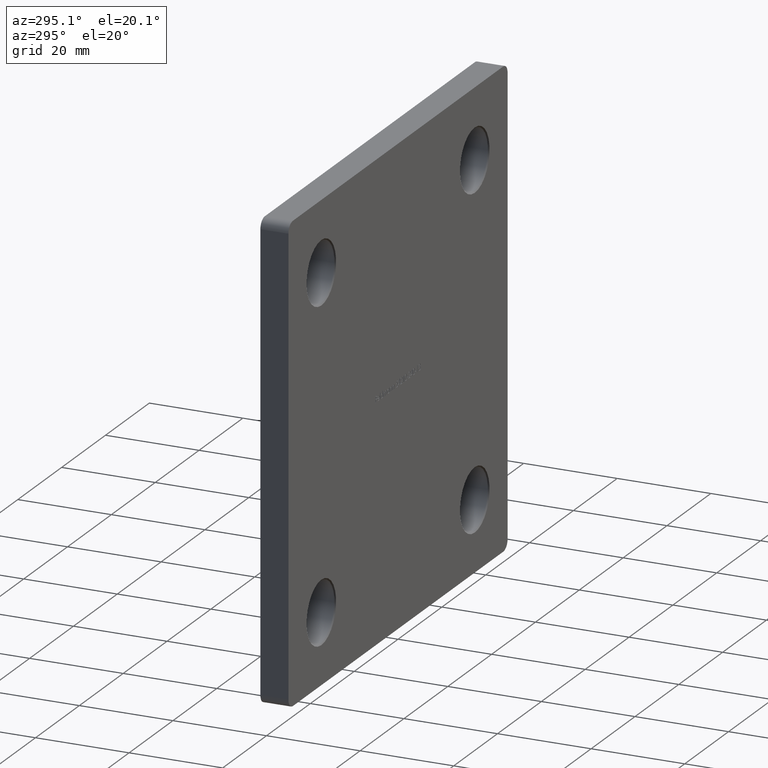
[diagram: clean part render]
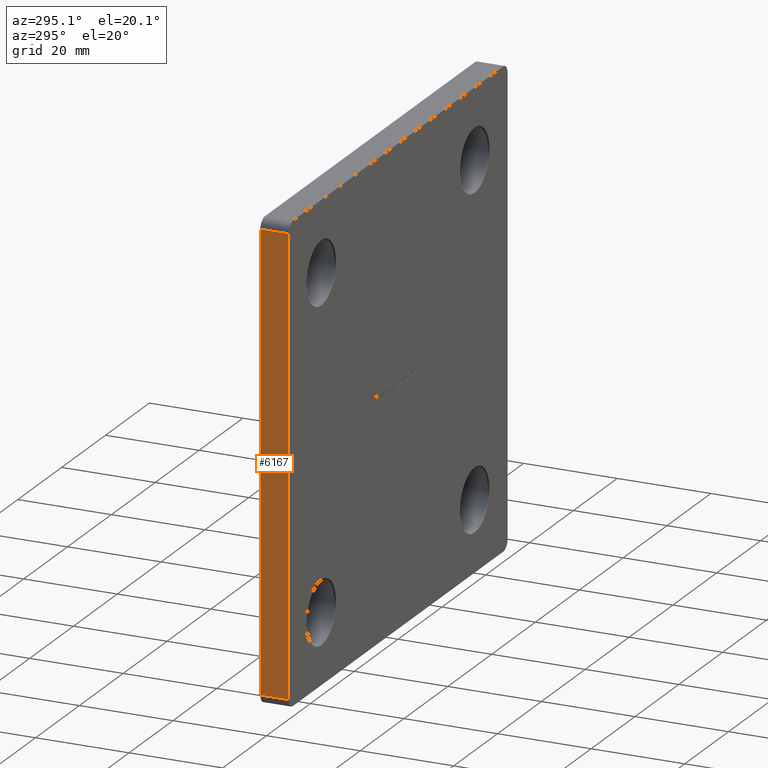
[diagram: same view with one face highlighted and labeled with its STEP entity id]
A machine part, auxiliary view. The second image highlights one B-rep face of the part: STEP entity #6167.
In plain terms, the highlighted planar face has unit normal (1, 0, -0).
Its self-contained STEP definition (entity closure, byte-faithful):
#137 = FACE_OUTER_BOUND ( 'NONE', #3703, .T. ) ;
#251 = VERTEX_POINT ( 'NONE', #13624 ) ;
#266 = VERTEX_POINT ( 'NONE', #8002 ) ;
#404 = DIRECTION ( 'NONE',  ( 1.000000000000000000, 0.000000000000000000, -1.387778780781445429E-16 ) ) ;
#494 = DIRECTION ( 'NONE',  ( 1.387778780781445676E-16, 0.000000000000000000, 1.000000000000000000 ) ) ;
#1739 = LINE ( 'NONE', #6084, #2787 ) ;
#1745 = VERTEX_POINT ( 'NONE', #7794 ) ;
#1865 = LINE ( 'NONE', #2129, #8620 ) ;
#2129 = CARTESIAN_POINT ( 'NONE',  ( -50.00000000000000000, 6.000000000000000000, -47.99999999999998579 ) ) ;
#2319 = CARTESIAN_POINT ( 'NONE',  ( -49.99999999999998579, 0.000000000000000000, 48.00000000000001421 ) ) ;
#2547 = DIRECTION ( 'NONE',  ( -1.387778780781445429E-16, 0.000000000000000000, -1.000000000000000000 ) ) ;
#2787 = VECTOR ( 'NONE', #494, 1000.000000000000000 ) ;
#3659 = EDGE_CURVE ( 'NONE', #266, #1745, #1739, .T. ) ;
#3703 = EDGE_LOOP ( 'NONE', ( #9847, #9995, #8320, #8711 ) ) ;
#4573 = CARTESIAN_POINT ( 'NONE',  ( -49.99999999999998579, 6.000000000000000000, 48.00000000000001421 ) ) ;
#4764 = CARTESIAN_POINT ( 'NONE',  ( -50.00000000000000000, 6.000000000000000000, -49.99999999999998579 ) ) ;
#4840 = LINE ( 'NONE', #4573, #12905 ) ;
#5681 = DIRECTION ( 'NONE',  ( -0.000000000000000000, 1.000000000000000000, -0.000000000000000000 ) ) ;
#6084 = CARTESIAN_POINT ( 'NONE',  ( -50.00000000000000000, 6.000000000000000000, -49.99999999999998579 ) ) ;
#6167 = ADVANCED_FACE ( 'NONE', ( #137 ), #13632, .F. ) ;
#6791 = DIRECTION ( 'NONE',  ( 1.387778780781445676E-16, 0.000000000000000000, 1.000000000000000000 ) ) ;
#7201 = EDGE_CURVE ( 'NONE', #266, #251, #1865, .T. ) ;
#7773 = VECTOR ( 'NONE', #6791, 1000.000000000000000 ) ;
#7794 = CARTESIAN_POINT ( 'NONE',  ( -49.99999999999998579, 6.000000000000000000, 48.00000000000001421 ) ) ;
#8002 = CARTESIAN_POINT ( 'NONE',  ( -50.00000000000000000, 6.000000000000000000, -47.99999999999998579 ) ) ;
#8320 = ORIENTED_EDGE ( 'NONE', *, *, #10418, .T. ) ;
#8620 = VECTOR ( 'NONE', #10926, 1000.000000000000000 ) ;
#8711 = ORIENTED_EDGE ( 'NONE', *, *, #10209, .T. ) ;
#8969 = AXIS2_PLACEMENT_3D ( 'NONE', #4764, #404, #2547 ) ;
#9847 = ORIENTED_EDGE ( 'NONE', *, *, #3659, .F. ) ;
#9995 = ORIENTED_EDGE ( 'NONE', *, *, #7201, .T. ) ;
#10065 = VERTEX_POINT ( 'NONE', #2319 ) ;
#10209 = EDGE_CURVE ( 'NONE', #10065, #1745, #4840, .T. ) ;
#10418 = EDGE_CURVE ( 'NONE', #251, #10065, #11043, .T. ) ;
#10926 = DIRECTION ( 'NONE',  ( 0.000000000000000000, -1.000000000000000000, 0.000000000000000000 ) ) ;
#11043 = LINE ( 'NONE', #13370, #7773 ) ;
#12905 = VECTOR ( 'NONE', #5681, 1000.000000000000000 ) ;
#13370 = CARTESIAN_POINT ( 'NONE',  ( -50.00000000000000000, 0.000000000000000000, -49.99999999999998579 ) ) ;
#13624 = CARTESIAN_POINT ( 'NONE',  ( -50.00000000000000000, 0.000000000000000000, -47.99999999999998579 ) ) ;
#13632 = PLANE ( 'NONE',  #8969 ) ;